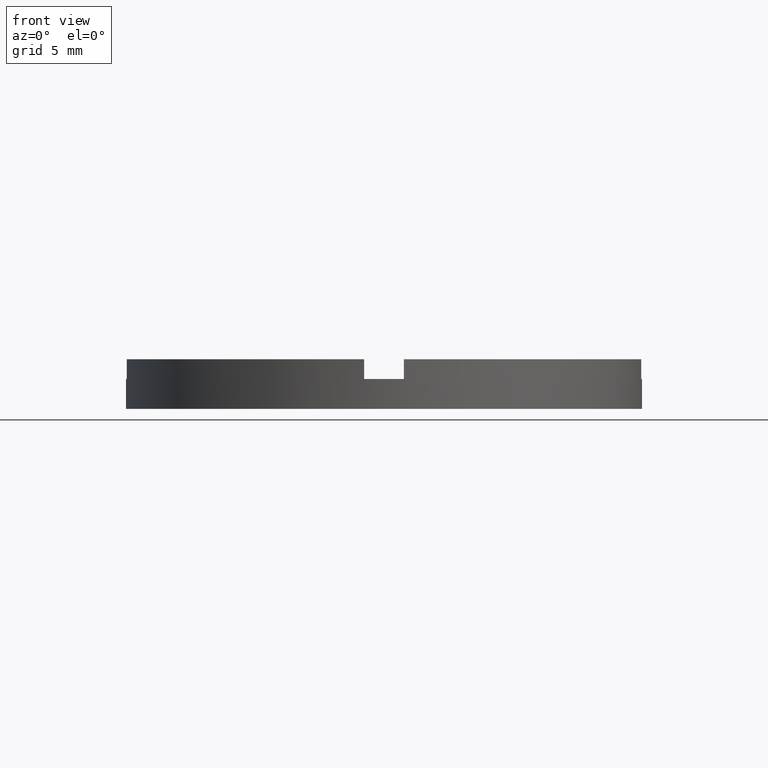
[diagram: clean part render]
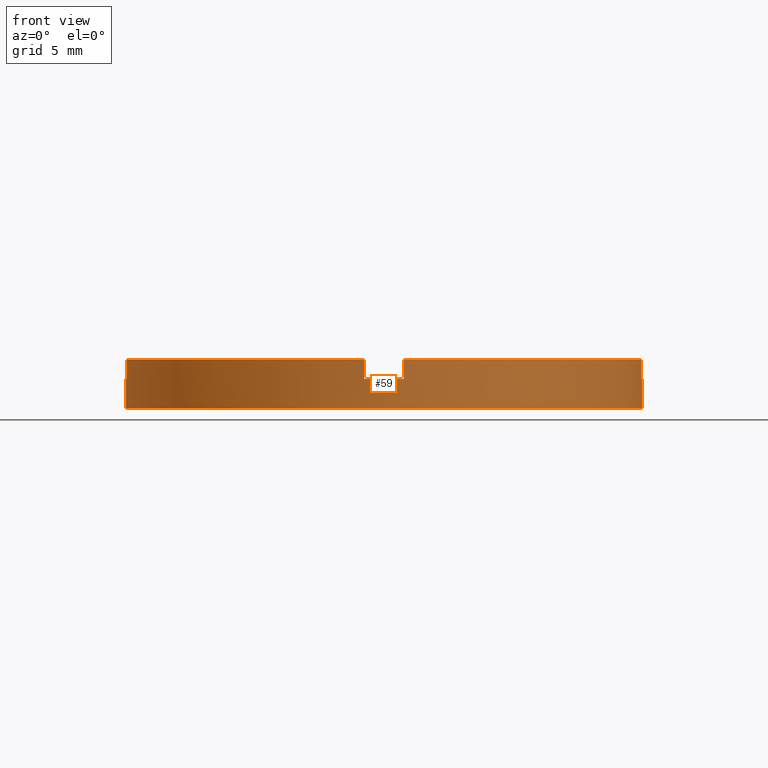
[diagram: same view with one face highlighted and labeled with its STEP entity id]
A machine part, front view. The second image highlights one B-rep face of the part: STEP entity #59.
In plain terms, the highlighted cylindrical surface (partial cylindrical patch) has radius 13 mm, axis along (-0, -0, -1).
Its self-contained STEP definition (entity closure, byte-faithful):
#6 = CARTESIAN_POINT ( 'NONE',  ( -12.99999999999999822, 0.000000000000000000, 1.500000000000000000 ) ) ;
#20 = EDGE_CURVE ( 'NONE', #100, #609, #453, .T. ) ;
#29 = DIRECTION ( 'NONE',  ( -1.000000000000000000, 0.000000000000000000, 0.000000000000000000 ) ) ;
#34 = DIRECTION ( 'NONE',  ( -0.000000000000000000, -0.000000000000000000, -1.000000000000000000 ) ) ;
#43 = EDGE_CURVE ( 'NONE', #413, #691, #459, .T. ) ;
#46 = CARTESIAN_POINT ( 'NONE',  ( 12.96148139681570655, -1.000000000000159872, 2.500000000000000000 ) ) ;
#53 = CARTESIAN_POINT ( 'NONE',  ( -12.99999999999999822, 0.000000000000000000, 0.000000000000000000 ) ) ;
#57 = CARTESIAN_POINT ( 'NONE',  ( 12.99999999999999822, 1.592040838891558898E-15, 0.000000000000000000 ) ) ;
#58 = CARTESIAN_POINT ( 'NONE',  ( 12.99999999999999822, 1.592040838891558898E-15, 2.500000000000000000 ) ) ;
#59 = ADVANCED_FACE ( 'NONE', ( #729 ), #214, .T. ) ;
#60 = EDGE_CURVE ( 'NONE', #105, #336, #462, .T. ) ;
#62 = EDGE_CURVE ( 'NONE', #705, #684, #216, .T. ) ;
#64 = DIRECTION ( 'NONE',  ( -0.000000000000000000, 0.000000000000000000, 1.000000000000000000 ) ) ;
#75 = EDGE_CURVE ( 'NONE', #106, #413, #220, .T. ) ;
#83 = AXIS2_PLACEMENT_3D ( 'NONE', #460, #621, #770 ) ;
#87 = ORIENTED_EDGE ( 'NONE', *, *, #634, .F. ) ;
#91 = CARTESIAN_POINT ( 'NONE',  ( -1.000000000000163425, -12.96148139681570655, 2.500000000000000000 ) ) ;
#94 = DIRECTION ( 'NONE',  ( 0.000000000000000000, 0.000000000000000000, 1.000000000000000000 ) ) ;
#100 = VERTEX_POINT ( 'NONE', #192 ) ;
#103 = CARTESIAN_POINT ( 'NONE',  ( 0.000000000000000000, 0.000000000000000000, 1.500000000000000000 ) ) ;
#105 = VERTEX_POINT ( 'NONE', #581 ) ;
#106 = VERTEX_POINT ( 'NONE', #6 ) ;
#112 = CARTESIAN_POINT ( 'NONE',  ( -1.000000000000163425, -12.96148139681570655, 2.500000000000000000 ) ) ;
#135 = ORIENTED_EDGE ( 'NONE', *, *, #437, .F. ) ;
#163 = ORIENTED_EDGE ( 'NONE', *, *, #306, .F. ) ;
#192 = CARTESIAN_POINT ( 'NONE',  ( 0.9999999999998365752, -12.96148139681572964, 2.500000000000000000 ) ) ;
#198 = ORIENTED_EDGE ( 'NONE', *, *, #60, .F. ) ;
#205 = DIRECTION ( 'NONE',  ( -0.000000000000000000, -0.000000000000000000, -1.000000000000000000 ) ) ;
#214 = CYLINDRICAL_SURFACE ( 'NONE', #431, 12.99999999999999822 ) ;
#216 = CIRCLE ( 'NONE', #461, 12.99999999999999822 ) ;
#220 = LINE ( 'NONE', #780, #224 ) ;
#224 = VECTOR ( 'NONE', #403, 1000.000000000000000 ) ;
#225 = VECTOR ( 'NONE', #489, 1000.000000000000000 ) ;
#227 = VECTOR ( 'NONE', #574, 1000.000000000000000 ) ;
#232 = DIRECTION ( 'NONE',  ( 0.000000000000000000, 0.000000000000000000, 1.000000000000000000 ) ) ;
#255 = AXIS2_PLACEMENT_3D ( 'NONE', #514, #232, #315 ) ;
#275 = VECTOR ( 'NONE', #205, 1000.000000000000000 ) ;
#278 = LINE ( 'NONE', #58, #275 ) ;
#287 = VECTOR ( 'NONE', #320, 1000.000000000000000 ) ;
#297 = EDGE_CURVE ( 'NONE', #105, #609, #502, .T. ) ;
#300 = LINE ( 'NONE', #539, #287 ) ;
#306 = EDGE_CURVE ( 'NONE', #106, #418, #473, .T. ) ;
#315 = DIRECTION ( 'NONE',  ( 1.000000000000000000, 0.000000000000000000, 0.000000000000000000 ) ) ;
#319 = CARTESIAN_POINT ( 'NONE',  ( -12.96148139681571543, -1.000000000000022427, 2.500000000000000000 ) ) ;
#320 = DIRECTION ( 'NONE',  ( -0.000000000000000000, -0.000000000000000000, -1.000000000000000000 ) ) ;
#325 = DIRECTION ( 'NONE',  ( 0.000000000000000000, 0.000000000000000000, 1.000000000000000000 ) ) ;
#328 = ORIENTED_EDGE ( 'NONE', *, *, #20, .F. ) ;
#329 = CARTESIAN_POINT ( 'NONE',  ( -12.96148139681571543, -1.000000000000022427, 1.500000000000000000 ) ) ;
#330 = ORIENTED_EDGE ( 'NONE', *, *, #62, .F. ) ;
#336 = VERTEX_POINT ( 'NONE', #493 ) ;
#342 = DIRECTION ( 'NONE',  ( 1.000000000000000000, 0.000000000000000000, 0.000000000000000000 ) ) ;
#344 = ORIENTED_EDGE ( 'NONE', *, *, #531, .T. ) ;
#347 = EDGE_LOOP ( 'NONE', ( #87, #198, #429, #328, #384, #135, #710, #330, #344, #163, #681, #409 ) ) ;
#358 = VERTEX_POINT ( 'NONE', #524 ) ;
#384 = ORIENTED_EDGE ( 'NONE', *, *, #592, .T. ) ;
#394 = CARTESIAN_POINT ( 'NONE',  ( -12.96148139681571543, -1.000000000000022427, 2.500000000000000000 ) ) ;
#399 = AXIS2_PLACEMENT_3D ( 'NONE', #506, #64, #554 ) ;
#403 = DIRECTION ( 'NONE',  ( -0.000000000000000000, -0.000000000000000000, -1.000000000000000000 ) ) ;
#409 = ORIENTED_EDGE ( 'NONE', *, *, #43, .T. ) ;
#413 = VERTEX_POINT ( 'NONE', #53 ) ;
#418 = VERTEX_POINT ( 'NONE', #329 ) ;
#429 = ORIENTED_EDGE ( 'NONE', *, *, #297, .T. ) ;
#431 = AXIS2_PLACEMENT_3D ( 'NONE', #767, #34, #29 ) ;
#437 = EDGE_CURVE ( 'NONE', #633, #358, #730, .T. ) ;
#438 = CARTESIAN_POINT ( 'NONE',  ( 12.96148139681570655, -1.000000000000159872, 2.500000000000000000 ) ) ;
#453 = CIRCLE ( 'NONE', #255, 12.99999999999999822 ) ;
#456 = CARTESIAN_POINT ( 'NONE',  ( 0.000000000000000000, 0.000000000000000000, 0.000000000000000000 ) ) ;
#459 = CIRCLE ( 'NONE', #759, 12.99999999999999822 ) ;
#460 = CARTESIAN_POINT ( 'NONE',  ( 0.000000000000000000, 0.000000000000000000, 1.500000000000000000 ) ) ;
#461 = AXIS2_PLACEMENT_3D ( 'NONE', #570, #775, #631 ) ;
#462 = CIRCLE ( 'NONE', #83, 12.99999999999999822 ) ;
#470 = LINE ( 'NONE', #394, #227 ) ;
#473 = CIRCLE ( 'NONE', #608, 12.99999999999999822 ) ;
#489 = DIRECTION ( 'NONE',  ( 0.000000000000000000, 0.000000000000000000, 1.000000000000000000 ) ) ;
#493 = CARTESIAN_POINT ( 'NONE',  ( 12.99999999999999822, 1.592040838891558898E-15, 1.500000000000000000 ) ) ;
#495 = VECTOR ( 'NONE', #94, 1000.000000000000000 ) ;
#502 = LINE ( 'NONE', #46, #495 ) ;
#506 = CARTESIAN_POINT ( 'NONE',  ( 0.000000000000000000, 0.000000000000000000, 1.500000000000000000 ) ) ;
#512 = EDGE_CURVE ( 'NONE', #633, #684, #740, .T. ) ;
#514 = CARTESIAN_POINT ( 'NONE',  ( 0.000000000000000000, 0.000000000000000000, 2.500000000000000000 ) ) ;
#524 = CARTESIAN_POINT ( 'NONE',  ( 0.9999999999998365752, -12.96148139681572964, 1.500000000000000000 ) ) ;
#531 = EDGE_CURVE ( 'NONE', #705, #418, #470, .T. ) ;
#539 = CARTESIAN_POINT ( 'NONE',  ( 0.9999999999998365752, -12.96148139681572964, 2.500000000000000000 ) ) ;
#554 = DIRECTION ( 'NONE',  ( 1.000000000000000000, 0.000000000000000000, 0.000000000000000000 ) ) ;
#570 = CARTESIAN_POINT ( 'NONE',  ( 0.000000000000000000, 0.000000000000000000, 2.500000000000000000 ) ) ;
#574 = DIRECTION ( 'NONE',  ( -0.000000000000000000, -0.000000000000000000, -1.000000000000000000 ) ) ;
#581 = CARTESIAN_POINT ( 'NONE',  ( 12.96148139681570655, -1.000000000000159872, 1.500000000000000000 ) ) ;
#586 = DIRECTION ( 'NONE',  ( 0.000000000000000000, 0.000000000000000000, 1.000000000000000000 ) ) ;
#592 = EDGE_CURVE ( 'NONE', #100, #358, #300, .T. ) ;
#608 = AXIS2_PLACEMENT_3D ( 'NONE', #103, #586, #342 ) ;
#609 = VERTEX_POINT ( 'NONE', #438 ) ;
#621 = DIRECTION ( 'NONE',  ( 0.000000000000000000, 0.000000000000000000, 1.000000000000000000 ) ) ;
#631 = DIRECTION ( 'NONE',  ( 1.000000000000000000, 0.000000000000000000, 0.000000000000000000 ) ) ;
#633 = VERTEX_POINT ( 'NONE', #735 ) ;
#634 = EDGE_CURVE ( 'NONE', #336, #691, #278, .T. ) ;
#681 = ORIENTED_EDGE ( 'NONE', *, *, #75, .T. ) ;
#684 = VERTEX_POINT ( 'NONE', #91 ) ;
#691 = VERTEX_POINT ( 'NONE', #57 ) ;
#698 = DIRECTION ( 'NONE',  ( 1.000000000000000000, 0.000000000000000000, 0.000000000000000000 ) ) ;
#705 = VERTEX_POINT ( 'NONE', #319 ) ;
#710 = ORIENTED_EDGE ( 'NONE', *, *, #512, .T. ) ;
#729 = FACE_OUTER_BOUND ( 'NONE', #347, .T. ) ;
#730 = CIRCLE ( 'NONE', #399, 12.99999999999999822 ) ;
#735 = CARTESIAN_POINT ( 'NONE',  ( -1.000000000000163425, -12.96148139681570655, 1.500000000000000000 ) ) ;
#740 = LINE ( 'NONE', #112, #225 ) ;
#759 = AXIS2_PLACEMENT_3D ( 'NONE', #456, #325, #698 ) ;
#767 = CARTESIAN_POINT ( 'NONE',  ( 0.000000000000000000, 0.000000000000000000, 2.500000000000000000 ) ) ;
#770 = DIRECTION ( 'NONE',  ( 1.000000000000000000, 0.000000000000000000, 0.000000000000000000 ) ) ;
#775 = DIRECTION ( 'NONE',  ( 0.000000000000000000, 0.000000000000000000, 1.000000000000000000 ) ) ;
#780 = CARTESIAN_POINT ( 'NONE',  ( -12.99999999999999822, 0.000000000000000000, 2.500000000000000000 ) ) ;